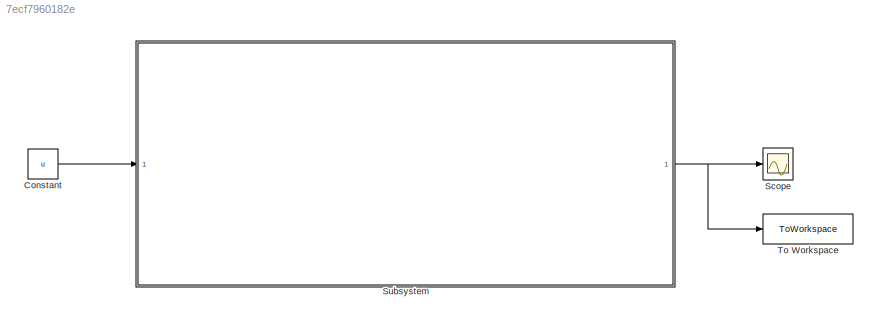
MODEL slx_7ecf7960182e
KIND model
CONFIG AbsTol = auto
CONFIG EnableMultiTasking = off
CONFIG FixedStep = auto
CONFIG MaxStep = auto
CONFIG MinStep = auto
CONFIG RelTol = 1e-3
CONFIG SampleTimeConstraint = Unconstrained
CONFIG SolverName = VariableStepAuto
CONFIG StartTime = 0.0
CONFIG StopTime = 30.0
BLOCK [Constant] Constant
  Value = u
BLOCK [Scope] Scope
  Floating = off
  NumInputPorts = 1
  ScopeSpecificationString = Simulink.scopes.TimeScopeBlockCfg('CurrentConfiguration', extmgr.ConfigurationSet(extmgr.Configuration('Core','General UI',true),extmgr.Configuration('Core','Source UI',true),extmgr.Configuration('Sources','WiredSimulink',true),extmgr.Configuration('Visuals','Time Domain',true,'SerializedDisplays',{struct('MinYLimReal','-1.37318','MaxYLimReal','1.35786','YLabelReal','','MinYLimMag','0.00000','MaxY...<+1460ch>
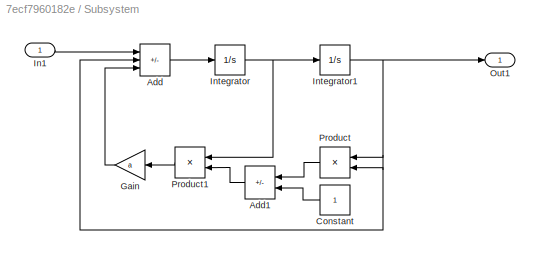
BLOCK [SubSystem] Subsystem
BLOCK [Sum] Subsystem/Add
  IconShape = rectangular
  Inputs = +-+
BLOCK [Sum] Subsystem/Add1
  IconShape = rectangular
  Inputs = -+
  NameLocation = top
BLOCK [Constant] Subsystem/Constant
  NameLocation = top
BLOCK [Gain] Subsystem/Gain
  Gain = a
  NameLocation = top
BLOCK [Inport] Subsystem/In1
BLOCK [Integrator] Subsystem/Integrator
  InitialCondition = p(2)
BLOCK [Integrator] Subsystem/Integrator1
  InitialCondition = p(1)
BLOCK [Outport] Subsystem/Out1
BLOCK [Product] Subsystem/Product
  NameLocation = top
BLOCK [Product] Subsystem/Product1
  NameLocation = top
BLOCK [ToWorkspace] To Workspace
  FixptAsFi = on
  MaxDataPoints = inf
  SampleTime = -1
  SaveFormat = Timeseries
  VariableName = simout
LINE Constant:1 -> Subsystem:1
LINE Subsystem/Add1:1 -> Subsystem/Product1:2
LINE Subsystem/Add:1 -> Subsystem/Integrator:1
LINE Subsystem/Constant:1 -> Subsystem/Add1:2
LINE Subsystem/Gain:1 -> Subsystem/Add:3
LINE Subsystem/In1:1 -> Subsystem/Add:1
NET Subsystem/Integrator1:1 -> Subsystem/Add:2, Subsystem/Out1:1, Subsystem/Product:1, Subsystem/Product:2
NET Subsystem/Integrator:1 -> Subsystem/Integrator1:1, Subsystem/Product1:1
LINE Subsystem/Product1:1 -> Subsystem/Gain:1
LINE Subsystem/Product:1 -> Subsystem/Add1:1
NET Subsystem:1 -> Scope:1, To Workspace:1
note: NET lines group one-source signal fan-out (src -> all destinations, sorted); 1:1 wires keep LINE
